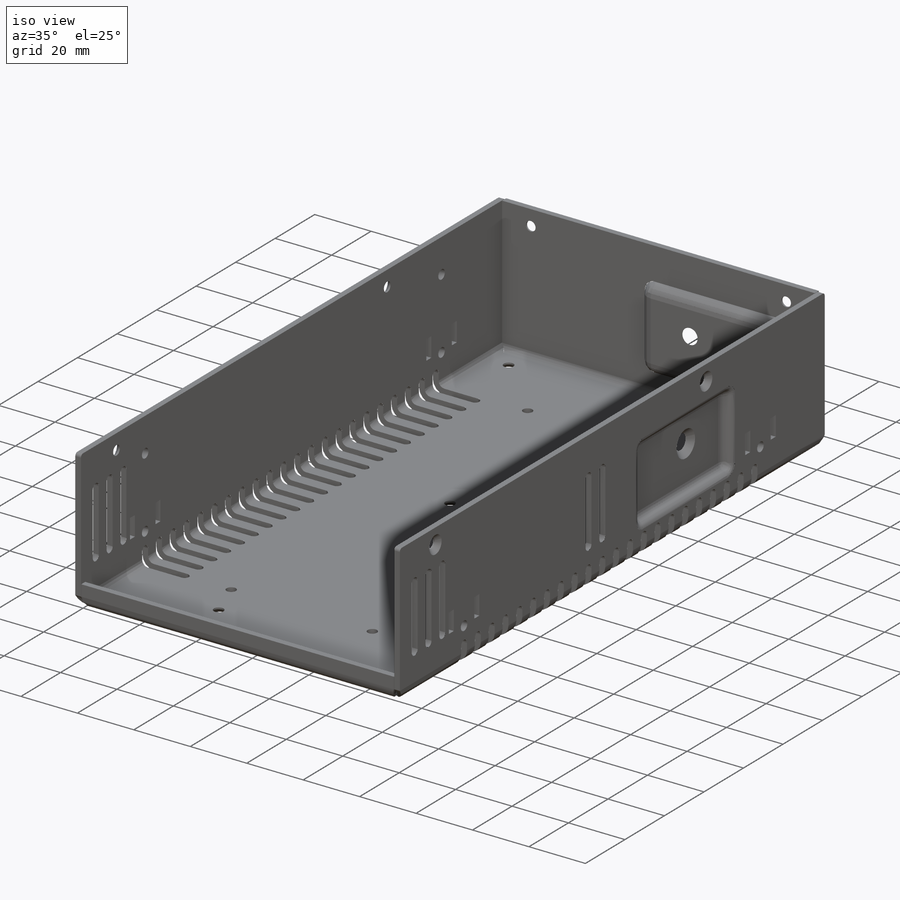
[diagram: iso view]
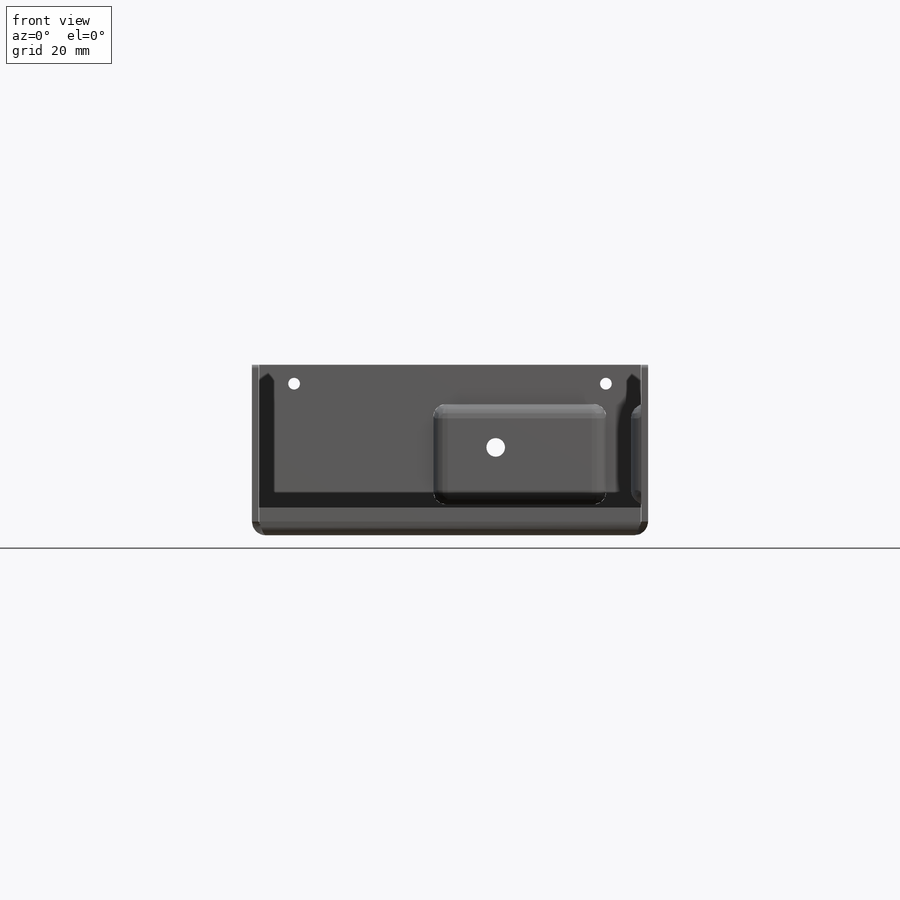
[diagram: front view]
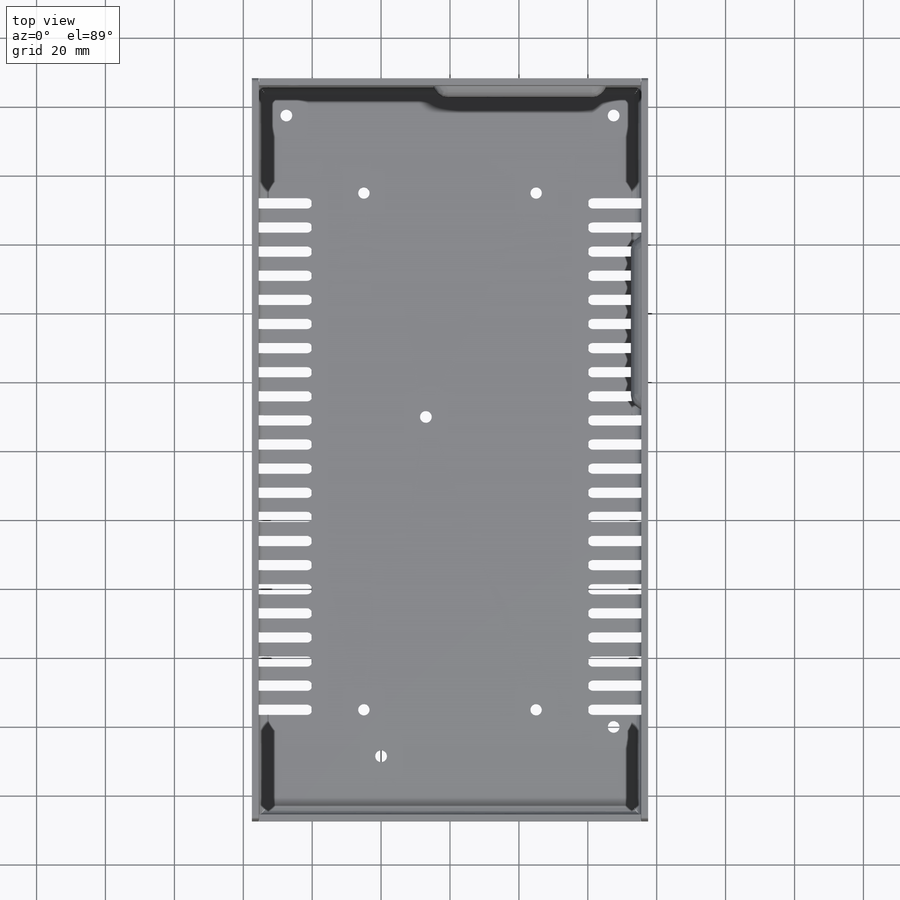
[diagram: top view]
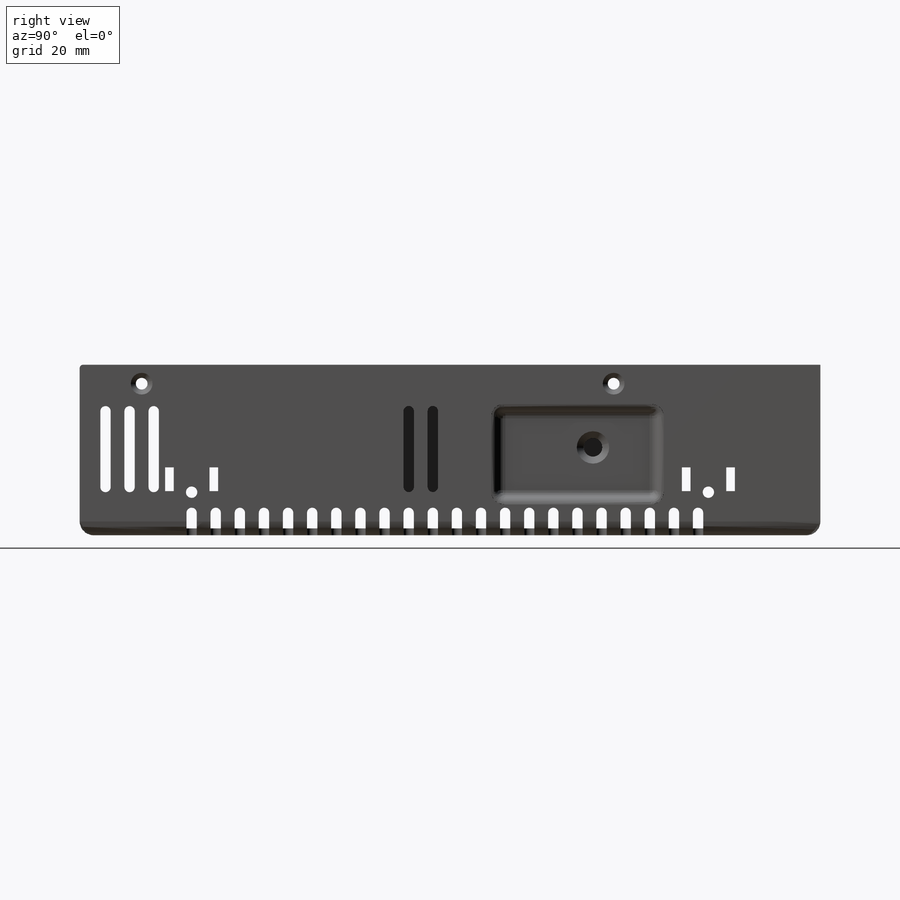
[diagram: right view]
SOLIDWORKS PART (.sldprt)
format: sldprt  version: not decoded by parser v0  size: 2,496,000 bytes
history: native  units: mm
features: sketch x88, sheet_metal_op x22, thread x10, hole x9, cut_extrude x8, extrude x4, material x3, fillet x3, mirror x2, chamfer x2, plane x1 + 18 further entries (+39 scaffold rows collapsed; 18 parser-record rows omitted)
feature tree (227):
  scaffold x39  (default folders/planes/origin — collapsed)
  material  "3003 Alloy"
  material  "Material <not specified>"
  material  "Material <not specified>"
  sketch  "Sketch1"  dims[c1.D1=115.0mm c1.D2=215.0mm c2.D1=0.7366mm c2.D2=0.5 c2.D3=0.0mm c2.D6=500.0mm]
  sheet_metal_op  "Base-Flange1"
  sketch  "Sketch14"
  sketch  "Sketch15"
  sketch  "Sketch16"
  sketch  "Sketch17"  dims[D1=2.0mm D4=90.0deg D5=1.0 D8=1.0mm D9=1.0mm]
  sheet_metal_op  "EdgeBend2"
  sheet_metal_op  "EdgeBend3"
  sheet_metal_op  "EdgeBend4"
  sketch  "Sketch18"  dims[D1=8.0mm]
  cut_extrude  "Cut-Extrude1"  [1 undecoded]
  sketch  "Sketch20"  dims[D1=1.5mm D2=6.5mm D3=35.5mm D5=7.0mm D4=22.0]
  cut_extrude  "Cut-Extrude2"  [1 undecoded]
  plane  "Plane1"
  sketch  "Sketch21"  dims[D1=16.0mm D2=22.0]
  cut_extrude  "Cut-Extrude3"  [1 undecoded]
  mirror  "Mirror1"
  sketch  "Sketch22"  dims[D2=1.5mm D1=22.0mm D4=7.0mm D5=13.5mm D6=7.5mm D3=3.0]
  cut_extrude  "Cut-Extrude4"  [1 undecoded]
  sketch  "Sketch23"  dims[D2=7.0mm D1=2.0]
  cut_extrude  "Cut-Extrude5"  [1 undecoded]
  sketch  "Sketch24"  dims[D1=29.0mm D2=50.0mm D3=9.0mm]
  sketch  "Sketch25"  dims[D1=0.0deg]
  sketch  "Sketch1"  dims[D1_1=70.0mm]
  extrude  "Boss-Extrude1"  Depth=5mm
  sketch  "Sketch2"  dims[c1.D5=2.0mm c1.D4=2.0mm c1.D1=21.0mm c1.D2=42.0mm c1.D3=3.0mm c2.D4=4.0mm c2.D3=~4.977761mm c3.D3=45.0deg c3.D2=42.0mm c3.D6=50.0mm c3.D4=4.0mm c3.D1=~6.199393mm c4.D1=45.0deg c4.D2=3.0mm c4.D3=5.0mm c4.D5=42.0mm c4.D6=~3.156854mm c4.D1_3=4.0mm c5.D6=21.0mm c5.D7=~2.247191mm c6.D7=~61.927513deg c6.D8=1.6mm c6.D2=6.0mm]
  extrude  "Boss-Extrude2"  Depth=3mm D1_2=3mm
  chamfer  "Chamfer1"  Distance=1.6mm Angle=61.93deg D1_4=1.6mm D2_1=61.93deg
  fillet  "Fillet3"  Radius=2.1mm D1_5=2.1mm
  sketch  "Sketch3"  dims[D1_6=0.0mm]
  cut_extrude  "Cut-Extrude2"  [1 undecoded]
  sketch  "Orientation Sketch"
  mirror  "Embossing Tool2"
  sketch  "Sketch26"  dims[c1.D1=25.5mm c1.D2=50.0mm c1.D3=29.0mm c1.D4=12.25mm c2.D1=9.0mm]
  sketch  "Sketch27"  dims[D1=0.0deg]
  sketch  "Sketch1"  dims[D1_1=70.0mm]
  extrude  "Boss-Extrude1"  Depth=5mm
  sketch  "Sketch2"  dims[c1.D5=2.0mm c1.D4=2.0mm c1.D1=21.0mm c1.D2=42.0mm c1.D3=3.0mm c2.D4=4.0mm c2.D3=~4.977761mm c3.D3=45.0deg c3.D2=42.0mm c3.D6=50.0mm c3.D4=4.0mm c3.D1=~6.199393mm c4.D1=45.0deg c4.D2=3.0mm c4.D3=5.0mm c4.D5=42.0mm c4.D6=~3.156854mm c4.D1_3=4.0mm c5.D6=21.0mm c5.D7=~2.247191mm c6.D7=~61.927513deg c6.D8=1.6mm c6.D2=6.0mm]
  extrude  "Boss-Extrude2"  Depth=3mm D1_2=3mm
  chamfer  "Chamfer1"  Distance=1.6mm Angle=61.93deg D1_4=1.6mm D2_1=61.93deg
  fillet  "Fillet3"  Radius=2.1mm D1_5=2.1mm
  sketch  "Sketch3"  dims[D1_6=0.0mm]
  cut_extrude  "Cut-Extrude2"  [1 undecoded]
  sketch  "Orientation Sketch"
  sketch  "Sketch28"  dims[D1=137.0mm D2=44.0mm D3=18.0mm]
  hole  "CSK for M3 Flat Head Machine Screw1"  Diameter=3.4mm Depth=2mm
  sketch  "3DSketch1"
  sketch  "Sketch29"  dims[hole-wizard template sketch: 59 standard entries collapsed; hole parameters above]
  sketch  "Sketch30"
  hole  "CSK for M3 Flat Head Machine Screw2"  Diameter=3.4mm Depth=2mm
  sketch  "3DSketch2"
  sketch  "Sketch31"  dims[hole-wizard template sketch: 59 standard entries collapsed; hole parameters above]
  sketch  "Sketch32"  dims[D1=44.0mm D2=90.5mm D3=12.25mm]
  hole  "CSK for M3 Flat Head Machine Screw3"  Diameter=3.4mm Depth=2mm
  sketch  "3DSketch3"
  sketch  "Sketch33"  dims[hole-wizard template sketch: 59 standard entries collapsed; hole parameters above]
  sketch  "Sketch34"  dims[D1=12.5mm D2=150.0mm D3=32.5mm]
  hole  "M4x0.7 Tapped Hole1"  Diameter=3.3mm Depth=2mm
  sketch  "3DSketch4"
  sketch  "Sketch35"  dims[hole-wizard template sketch: 60 standard entries collapsed; hole parameters kept: c18.Thru Tap Drill Depth=2.0mm]
  thread  "Hole Thread1"  Diameter=4mm  [1 undecoded]
  thread  "Hole Thread2"  Diameter=4mm  [1 undecoded]
  sketch  "Sketch36"  dims[D1=25.0mm]
  hole  "M4x0.7 Tapped Hole2"  Diameter=3.3mm Depth=115mm
  sketch  "3DSketch5"
  sketch  "Sketch37"  dims[hole-wizard template sketch: 60 standard entries collapsed; hole parameters kept: c18.Thru Tap Drill Depth=115.0mm]
  thread  "Hole Thread3"  Diameter=4mm  [1 undecoded]
  thread  "Hole Thread4"  Diameter=4mm  [1 undecoded]
  thread  "Hole Thread5"  Diameter=4mm  [1 undecoded]
  thread  "Hole Thread6"  Diameter=4mm  [1 undecoded]
  sketch  "Sketch38"  dims[D1=50.0mm D2=150.0mm D3=32.5mm D4=32.5mm]
  hole  "M4x0.7 Tapped Hole3"  Diameter=3.3mm Depth=2mm
  sketch  "3DSketch6"
  sketch  "Sketch39"  dims[hole-wizard template sketch: 60 standard entries collapsed; hole parameters kept: c18.Thru Tap Drill Depth=2.0mm]
  thread  "Hole Thread7"  Diameter=4mm  [1 undecoded]
  thread  "Hole Thread8"  Diameter=4mm  [1 undecoded]
  thread  "Hole Thread9"  Diameter=4mm  [1 undecoded]
  thread  "Hole Thread10"  Diameter=4mm  [1 undecoded]
  sketch  "Sketch40"  dims[D1=6.9mm D2=7.2mm D3=10.4mm D4=2.5mm]
  cut_extrude  "Cut-Extrude6"  [1 undecoded]
  sketch  "Sketch41"  dims[D1=66.0mm D2=25.5mm]
  hole  "CSK for M4 Flat Head Machine Screw1"  Diameter=4.5mm Depth=2mm
  sketch  "3DSketch7"
  sketch  "Sketch42"  dims[hole-wizard template sketch: 55 standard entries collapsed; hole parameters kept: c17.Thru Hole Depth=2.0mm c17.Near C'Sink Dia.=9.4mm c17.D4=~3.666174mm c17.Near C'Sink Angle=90.0deg]
  sketch  "Sketch43"  dims[D1=25.5mm]
  hole  "CSK for M4 Flat Head Machine Screw2"  Diameter=4.5mm Depth=2mm
  sketch  "3DSketch8"
  sketch  "Sketch44"  dims[hole-wizard template sketch: 55 standard entries collapsed; hole parameters kept: c17.Thru Hole Depth=2.0mm c17.Near C'Sink Dia.=9.4mm c17.D4=~3.666174mm c17.Near C'Sink Angle=90.0deg]
  sketch  "Sketch45"  dims[D1=95.0mm D2=10.0mm D3=177.5mm D4=27.5mm D5=90.0mm D6=40.5mm D7=19.0mm D8=37.5mm]
  hole  "CSK for M3 Flat Head Machine Screw4"  Diameter=3.4mm Depth=2mm
  sketch  "3DSketch9"
  sketch  "Sketch46"  dims[hole-wizard template sketch: 59 standard entries collapsed; hole parameters above]
  fillet  "Fillet1"  Radius=1mm
  sketch  "Bend-Lines1"
  sketch  "Bounding-Box1"
  sheet_metal_op  "Sheet-Metal1"
  "Flat-Pattern1"
  sketch  "Bend-Lines2"
  sketch  "Bounding-Box2"
  parser-record x18  (decoder bookkeeping rows leaked as tree rows — omitted from the tree; the rows remain in map.json)
  sheet_metal_op  "Sheet-Metal2"
  "Flat-Pattern1"
  sketch  "Bend-Lines2"
  sketch  "Bounding-Box2"
  sheet_metal_op  "Sheet-Metal3"
  "Flat-Pattern1"
  sketch  "Bend-Lines2"
  sketch  "Bounding-Box2"
  sheet_metal_op  "Sheet-Metal4"
  "Flat-Pattern1"
  sketch  "Bend-Lines2"
  sketch  "Bounding-Box2"
  sheet_metal_op  "Sheet-Metal5"
  "Flat-Pattern1"
  sketch  "Bend-Lines2"
  sketch  "Bounding-Box2"
  sheet_metal_op  "Sheet-Metal6"
  "Flat-Pattern1"
  sketch  "Bend-Lines2"
  sketch  "Bounding-Box2"
  sheet_metal_op  "Sheet-Metal7"
  "Flat-Pattern1"
  sketch  "Bend-Lines2"
  sketch  "Bounding-Box2"
  sheet_metal_op  "Sheet-Metal8"
  "Flat-Pattern1"
  sketch  "Bend-Lines2"
  sketch  "Bounding-Box2"
  sheet_metal_op  "Sheet-Metal9"
  "Flat-Pattern1"
  sketch  "Bend-Lines2"
  sketch  "Bounding-Box2"
  sheet_metal_op  "Sheet-Metal10"
  "Flat-Pattern1"
  sketch  "Bend-Lines2"
  sketch  "Bounding-Box2"
  sheet_metal_op  "Sheet-Metal11"
  "Flat-Pattern1"
  sketch  "Bend-Lines2"
  sketch  "Bounding-Box2"
  sheet_metal_op  "Sheet-Metal12"
  "Flat-Pattern1"
  sketch  "Bend-Lines2"
  sketch  "Bounding-Box2"
  sheet_metal_op  "Sheet-Metal13"
  "Flat-Pattern1"
  sketch  "Bend-Lines2"
  sketch  "Bounding-Box2"
  sheet_metal_op  "Sheet-Metal14"
  "Flat-Pattern1"
  sketch  "Bend-Lines2"
  sketch  "Bounding-Box2"
  sheet_metal_op  "Sheet-Metal15"
  "Flat-Pattern1"
  sketch  "Bend-Lines2"
  sketch  "Bounding-Box2"
  sheet_metal_op  "Sheet-Metal16"
  "Flat-Pattern1"
  sketch  "Bend-Lines2"
  sketch  "Bounding-Box2"
  sheet_metal_op  "Sheet-Metal17"
  "Flat-Pattern1"
  sketch  "Bend-Lines2"
  sketch  "Bounding-Box2"
  sheet_metal_op  "Sheet-Metal18"
  "Flat-Pattern1"
  sketch  "Bend-Lines2"
  sketch  "Bounding-Box2"
decode coverage: 63 of 148 modeling features carry decoded parameters; 18 rows unclassified (native names shown)
note: ~ marks probable driven/reference dimensions
note: 18 parameter values undecoded
summary: no parameter record found for 8 features; Diameter pulled from absorbed wizard sketch
note: suppression state not decoded; provenance and decode notes live in map.json
